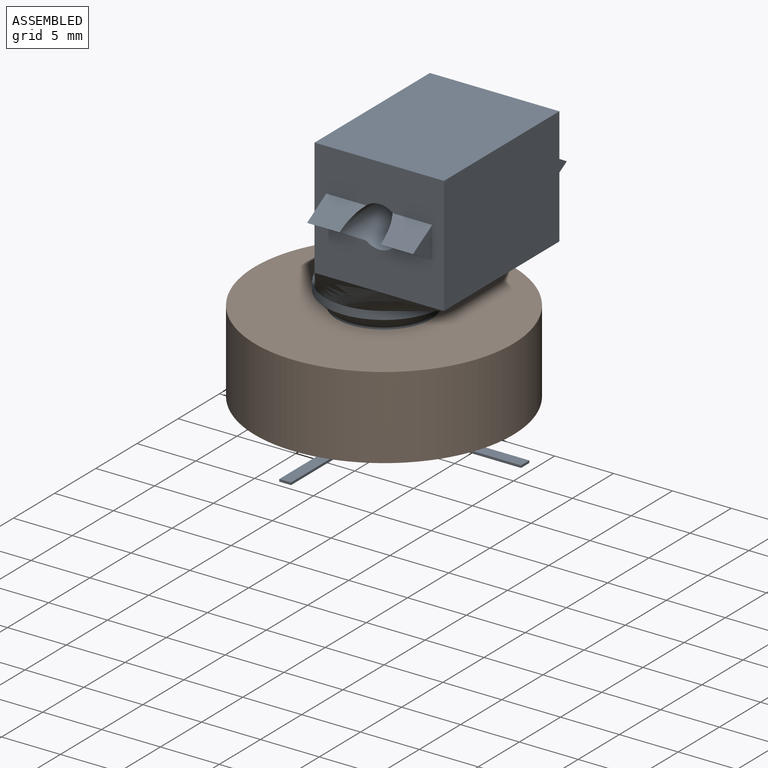
[diagram: assembled view]
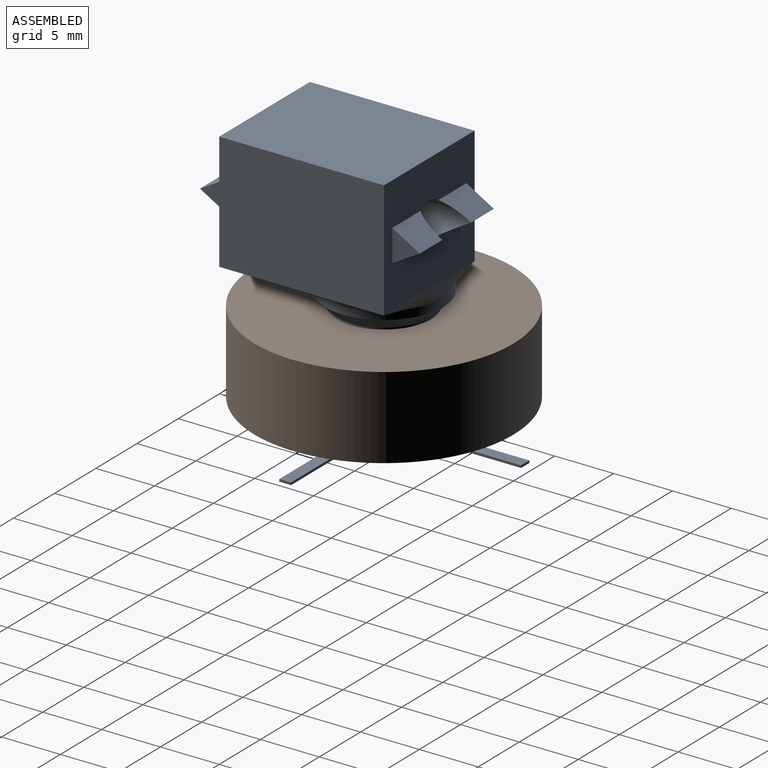
[diagram: assembled view, second angle]
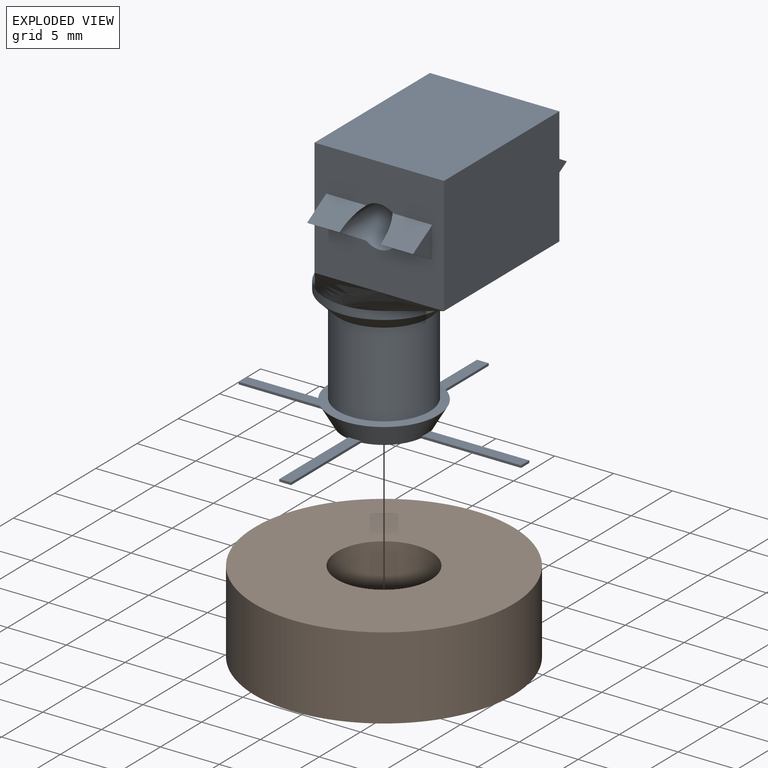
[diagram: exploded view]
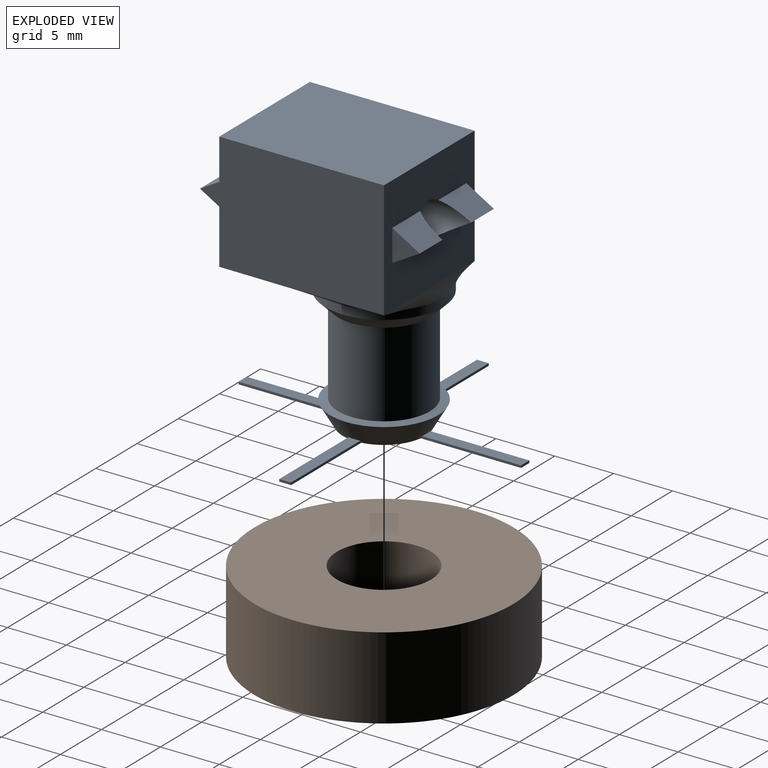
[diagram: exploded view, second angle]
FCSTD DOCUMENT  (FreeCAD 0.21R33668 +7 (Git))
Label: robot-idler
License: All rights reserved
LicenseURL: https://en.wikipedia.org/wiki/All_rights_reserved
objects: Sketcher::SketchObject×8, PartDesign::Plane×3, PartDesign::Revolution×2, PartDesign::Body×2, PartDesign::Pad×2, App::Link×1, PartDesign::Chamfer×1, PartDesign::AdditiveLoft×1, PartDesign::Pocket×1, App::LinkGroup×1
note: 27 computed .brp shape members not serialized (recipe doc carries the construction recipe); baked Part::Feature solids carry a one-line shape summary decoded from their .brp
EXTERNAL_REF file=Off-the-shelf/608.FCStd obj=Body

FEATURE [Sketcher::SketchObject] Sketch
  FullyConstrained = true
  MapMode = 5
  Placement = pos=(0,0,0) rot=(0.57735,0.57735,0.57735;2.0944rad)
  Support = -> [YZ_Plane]
  sketch-geometry (10):
    g0: LineSegment StartX=9.6 StartY=11.2 StartZ=0 EndX=9.6 EndY=10.7 EndZ=0
    g1: LineSegment StartX=9.6 StartY=10.7 StartZ=0 EndX=11.1 EndY=9.2 EndZ=0
    g2: LineSegment StartX=11.1 StartY=9.2 StartZ=0 EndX=11.1 EndY=2 EndZ=0
    g3: LineSegment StartX=11.1 StartY=2 StartZ=0 EndX=9.6 EndY=1.73551 EndZ=0
    g4: LineSegment StartX=9.6 StartY=1.73551 StartZ=0 EndX=10.602 EndY=0 EndZ=0
    g5: LineSegment StartX=10.602 StartY=0 StartZ=0 EndX=17 EndY=0 EndZ=0
    g6: LineSegment StartX=17 StartY=0 StartZ=0 EndX=17 EndY=11.2 EndZ=0
    g7: LineSegment StartX=17 StartY=11.2 StartZ=0 EndX=9.6 EndY=11.2 EndZ=0
    g8: LineSegment StartX=9.6 StartY=1.73551 StartZ=0 EndX=17 EndY=1.73551 EndZ=0
    g9: LineSegment StartX=11.1 StartY=9.2 StartZ=0 EndX=17 EndY=9.2 EndZ=0
  constraints (31):
    c: Vertical(g0)
    c: Coincident(g0,g1)
    c: Coincident(g1,g2)
    c: Vertical(g2)
    c: Coincident(g2,g3)
    c: Coincident(g3,g4)
    c: PointOnObject(g4,g-1)
    c: Coincident(g4,g5)
    c: PointOnObject(g5,g-1)
    c: Coincident(g5,g6)
    c: Vertical(g6)
    c: Coincident(g6,g7)
    c: Coincident(g7,g0)
    c: Horizontal(g7)
    c: DistanceX(g-1,g5) = 17
    c: DistanceY(g5,g2) = 2
    c: Coincident(g8,g3)
    c: PointOnObject(g8,g6)
    c: Horizontal(g8)
    c: Angle(g8,g3) = 0.174533
    c: DistanceX(g-1,g2) = 11.1
    c: DistanceY(g2,g2) = 7.2
    c: DistanceX(g0,g1) = 1.5
    c: Coincident(g9,g1)
    c: PointOnObject(g9,g6)
    c: Horizontal(g9)
    c: Angle(g1,g9) = 3.92699
    c: DistanceY(g1,g6) = 2
    c: DistanceX(g3,g2) = 1.5
    c: Angle(g5,g4) = 2.0944
    c: DistanceY(g6,g6) = 11.2
FEATURE [PartDesign::Revolution] Revolution
  Angle = 360
  Axis = (-2e-16,3e-16,1)
  Base = (0,0,0)
  Placement = pos=(0,0,0) rot=(0.57735,0.57735,0.57735;2.0944rad)
  Profile = -> Sketch
  ReferenceAxis = -> Sketch [V_Axis]
  Reversed = true
FEATURE [Sketcher::SketchObject] Sketch001
  FullyConstrained = true
  MapMode = 5
  Placement = pos=(0,0,0) rot=(0.57735,0.57735,0.57735;2.0944rad)
  Support = -> [YZ_Plane001]
  sketch-geometry (10):
    g0: LineSegment StartX=0 StartY=0 StartZ=0 EndX=3.5 EndY=0 EndZ=0
    g1: LineSegment StartX=3.5 StartY=0 StartZ=0 EndX=4.58497 EndY=1.87922 EndZ=0
    g2: LineSegment StartX=4.58497 StartY=1.87922 StartZ=0 EndX=3.9 EndY=2 EndZ=0
    g3: LineSegment StartX=3.9 StartY=2 StartZ=0 EndX=3.9 EndY=9.2 EndZ=0
    g4: LineSegment StartX=3.9 StartY=9.2 StartZ=0 EndX=5 EndY=10.3 EndZ=0
    g5: LineSegment StartX=5 StartY=10.3 StartZ=0 EndX=5 EndY=11 EndZ=0
    g6: LineSegment StartX=5 StartY=11 StartZ=0 EndX=0 EndY=11 EndZ=0
    g7: LineSegment StartX=0 StartY=11 StartZ=0 EndX=0 EndY=0 EndZ=0
    g8: LineSegment StartX=3.9 StartY=2 StartZ=0 EndX=0 EndY=2 EndZ=0
    g9: LineSegment StartX=3.9 StartY=9.2 StartZ=0 EndX=0 EndY=9.2 EndZ=0
  constraints (29):
    c: Coincident(g-1,g0)
    c: PointOnObject(g0,g-1)
    c: Coincident(g0,g1)
    c: Coincident(g1,g2)
    c: Coincident(g2,g3)
    c: Vertical(g3)
    c: Coincident(g3,g4)
    c: Coincident(g4,g5)
    c: Vertical(g5)
    c: Coincident(g5,g6)
    c: PointOnObject(g6,g-2)
    c: Horizontal(g6)
    c: Coincident(g6,g7)
    c: Coincident(g7,g0)
    c: DistanceX(g0,g0) = 3.5
    c: Angle(g1,g0) = 2.0944
    c: DistanceY(g0,g2) = 2
    c: DistanceX(g6,g3) = 3.9
    c: DistanceY(g3,g3) = 7.2
    c: Coincident(g8,g2)
    c: PointOnObject(g8,g7)
    c: Horizontal(g8)
    c: Angle(g8,g2) = 2.96706
    c: Coincident(g9,g3)
    c: PointOnObject(g9,g7)
    c: Horizontal(g9)
    c: Angle(g4,g9) = 2.35619
    c: DistanceX(g6,g6) = 5
    c: DistanceY(g0,g5) = 11
FEATURE [PartDesign::Revolution] Revolution001
  Angle = 360
  Axis = (-2e-16,3e-16,1)
  Base = (0,0,0)
  Placement = pos=(0,0,0) rot=(0.57735,0.57735,0.57735;2.0944rad)
  Profile = -> Sketch001
  ReferenceAxis = -> Sketch001 [V_Axis]
  Reversed = true
FEATURE [App::Link] Link  label="bearing"
  LinkPlacement = pos=(0,0,5.6) rot=(1,0,0;1.5708rad)
  LinkedObject = -> <external Off-the-shelf/608.FCStd>#Body
  Placement = pos=(0,0,5.6) rot=(1,0,0;1.5708rad)
FEATURE [PartDesign::Chamfer] Chamfer
  Angle = 45
  Base = -> Revolution [Face6]
  BaseFeature = -> Revolution
  ChamferType = 0
  FlipDirection = false
  Placement = pos=(0,0,0) rot=(0.57735,0.57735,0.57735;2.0944rad)
  Size = 0.5
  Size2 = 1
  SupportTransform = false
  UseAllEdges = false
FEATURE [PartDesign::Body] Body  label="outer"
  Group = -> [Sketch,Revolution,Chamfer]
  Origin = -> Origin
  Tip = -> Chamfer
FEATURE [PartDesign::Plane] DatumPlane
  Length = 60
  MapMode = 5
  Placement = pos=(-4.8e-15,3.1e-15,11) rot=(0,0,-1;1.5708rad)
  ResizeMode = 0
  Support = -> [Revolution001]
  Width = 60
FEATURE [Sketcher::SketchObject] Sketch002
  FullyConstrained = true
  MapMode = 5
  Placement = pos=(-4.8e-15,3.1e-15,11) rot=(0,0,-1;1.5708rad)
  Support = -> [DatumPlane]
  sketch-geometry (1):
    g0: Circle CenterX=0 CenterY=0 CenterZ=0 NormalX=0 NormalY=0 NormalZ=1 AngleXU=0 Radius=5
  constraints (2):
    c: Coincident(g0,g-1)
    c: Diameter(g0) = 10
FEATURE [PartDesign::Plane] DatumPlane001
  AttachmentOffset = pos=(0,0,3) rot=(0,0,1;0rad)
  Length = 60
  MapMode = 5
  Placement = pos=(-6.2e-15,3.9e-15,14) rot=(0,0,-1;1.5708rad)
  ResizeMode = 0
  Support = -> [DatumPlane]
  Width = 60
FEATURE [Sketcher::SketchObject] Sketch003
  FullyConstrained = true
  MapMode = 5
  Placement = pos=(-6.2e-15,3.9e-15,14) rot=(0,0,-1;1.5708rad)
  Support = -> [DatumPlane001]
  sketch-geometry (4):
    g0: LineSegment StartX=-7 StartY=10 StartZ=0 EndX=7 EndY=10 EndZ=0
    g1: LineSegment StartX=7 StartY=10 StartZ=0 EndX=7 EndY=-1 EndZ=0
    g2: LineSegment StartX=7 StartY=-1 StartZ=0 EndX=-7 EndY=-1 EndZ=0
    g3: LineSegment StartX=-7 StartY=-1 StartZ=0 EndX=-7 EndY=10 EndZ=0
  constraints (11):
    c: Coincident(g0,g1)
    c: Coincident(g1,g2)
    c: Coincident(g2,g3)
    c: Coincident(g3,g0)
    c: Horizontal(g2)
    c: Vertical(g1)
    c: Symmetric(g0,g0,g-2)
    c: Vertical(g3)
    c: DistanceY(g-1,g0) = 10
    c: DistanceX(g0,g0) = 14
    c: DistanceY(g1,g-1) = 1
FEATURE [PartDesign::Plane] DatumPlane002
  AttachmentOffset = pos=(0,0,10) rot=(0,0,1;0rad)
  Length = 60
  MapMode = 5
  Placement = pos=(-1.06e-14,6.7e-15,24) rot=(0,0,-1;1.5708rad)
  ResizeMode = 0
  Support = -> [DatumPlane001]
  Width = 60
FEATURE [Sketcher::SketchObject] Sketch004
  FullyConstrained = true
  MapMode = 5
  Placement = pos=(-1.06e-14,6.7e-15,24) rot=(0,0,-1;1.5708rad)
  Support = -> [DatumPlane002]
  sketch-geometry (4):
    g0: LineSegment StartX=-7 StartY=10 StartZ=0 EndX=7 EndY=10 EndZ=0
    g1: LineSegment StartX=7 StartY=10 StartZ=0 EndX=7 EndY=-1 EndZ=0
    g2: LineSegment StartX=7 StartY=-1 StartZ=0 EndX=-7 EndY=-1 EndZ=0
    g3: LineSegment StartX=-7 StartY=-1 StartZ=0 EndX=-7 EndY=10 EndZ=0
  constraints (11):
    c: Coincident(g0,g1)
    c: Coincident(g1,g2)
    c: Coincident(g2,g3)
    c: Coincident(g3,g0)
    c: Horizontal(g2)
    c: Vertical(g1)
    c: Vertical(g3)
    c: DistanceX(g0,g0) = 14
    c: Symmetric(g0,g0,g-2)
    c: DistanceY(g-1,g0) = 10
    c: DistanceY(g1,g-1) = 1
FEATURE [PartDesign::AdditiveLoft] AdditiveLoft
  BaseFeature = -> Revolution001
  Closed = false
  Placement = pos=(0,0,0) rot=(0.57735,0.57735,0.57735;2.0944rad)
  Profile = -> Sketch002
  Ruled = true
  Sections = -> [Sketch003,Sketch004]
FEATURE [Sketcher::SketchObject] Sketch005
  FullyConstrained = true
  MapMode = 5
  Placement = pos=(0,0,0) rot=(0.57735,0.57735,0.57735;2.0944rad)
  Support = -> [YZ_Plane001]
  sketch-geometry (8):
    g0: LineSegment StartX=-7 StartY=20.35 StartZ=0 EndX=-9.33827 EndY=19 EndZ=0
    g1: LineSegment StartX=-9.33827 StartY=19 StartZ=0 EndX=-7 EndY=17.65 EndZ=0
    g2: LineSegment StartX=-7 StartY=17.65 StartZ=0 EndX=7 EndY=17.65 EndZ=0
    g3: LineSegment StartX=7 StartY=17.65 StartZ=0 EndX=9.33827 EndY=19 EndZ=0
    g4: LineSegment StartX=9.33827 StartY=19 StartZ=0 EndX=7 EndY=20.35 EndZ=0
    g5: LineSegment StartX=7 StartY=20.35 StartZ=0 EndX=-7 EndY=20.35 EndZ=0
    g6: LineSegment StartX=-7 StartY=20.35 StartZ=0 EndX=-7 EndY=17.65 EndZ=0
    g7: LineSegment StartX=7 StartY=20.35 StartZ=0 EndX=7 EndY=17.65 EndZ=0
  constraints (21):
    c: Coincident(g0,g1)
    c: Coincident(g1,g2)
    c: Horizontal(g2)
    c: Coincident(g2,g3)
    c: Coincident(g3,g4)
    c: Coincident(g4,g5)
    c: Coincident(g5,g0)
    c: Coincident(g6,g0)
    c: Coincident(g6,g1)
    c: Vertical(g6)
    c: Coincident(g7,g4)
    c: Coincident(g7,g2)
    c: Vertical(g7)
    c: Equal(g0,g1)
    c: Equal(g4,g3)
    c: Equal(g1,g3)
    c: Symmetric(g0,g4,g-2)
    c: Equal(g1,g6)
    c: DistanceX(g5,g5) = 14
    c: DistanceY(g2,g4) = 2.7
    c: DistanceY(g-1,g3) = 19
FEATURE [PartDesign::Pad] Pad
  BaseFeature = -> AdditiveLoft
  Direction = (1,-2e-16,3e-16)
  Length = 9
  Length2 = 10
  Placement = pos=(0,0,0) rot=(0.57735,0.57735,0.57735;2.0944rad)
  Profile = -> Sketch005
  ReferenceAxis = -> Sketch005 [N_Axis]
  Type = 0
FEATURE [Sketcher::SketchObject] Sketch006
  FullyConstrained = true
  MapMode = 5
  Placement = pos=(0,0,0) rot=(1,0,0;1.5708rad)
  Support = -> [XZ_Plane001]
  sketch-geometry (1):
    g0: Circle CenterX=4.5 CenterY=19 CenterZ=0 NormalX=0 NormalY=0 NormalZ=1 AngleXU=0 Radius=1.75
  constraints (3):
    c: Diameter(g0) = 3.5
    c: DistanceY(g-1,g0) = 19
    c: DistanceX(g-1,g0) = 4.5
FEATURE [PartDesign::Pocket] Pocket
  BaseFeature = -> Pad
  Direction = (0,1,2e-16)
  Length = 5
  Length2 = 5
  Midplane = true
  Placement = pos=(0,0,0) rot=(0.57735,0.57735,0.57735;2.0944rad)
  Profile = -> Sketch006
  ReferenceAxis = -> Sketch006 [N_Axis]
  Type = 1
FEATURE [Sketcher::SketchObject] Sketch007
  FullyConstrained = true
  MapMode = 5
  Support = -> [XY_Plane001]
  sketch-geometry (21):
    g0: LineSegment StartX=12 StartY=0.5 StartZ=0 EndX=3 EndY=0.5 EndZ=0
    g1: LineSegment StartX=3 StartY=0.5 StartZ=0 EndX=3 EndY=-0.5 EndZ=0
    g2: LineSegment StartX=3 StartY=-0.5 StartZ=0 EndX=12 EndY=-0.5 EndZ=0
    g3: LineSegment StartX=12 StartY=-0.5 StartZ=0 EndX=12 EndY=0.5 EndZ=0
    g4: LineSegment StartX=0.5 StartY=12 StartZ=0 EndX=-0.5 EndY=12 EndZ=0
    g5: LineSegment StartX=-0.5 StartY=12 StartZ=0 EndX=-0.5 EndY=3 EndZ=0
    g6: LineSegment StartX=-0.5 StartY=3 StartZ=0 EndX=0.5 EndY=3 EndZ=0
    g7: LineSegment StartX=0.5 StartY=3 StartZ=0 EndX=0.5 EndY=12 EndZ=0
    g8: LineSegment StartX=-3 StartY=0.5 StartZ=0 EndX=-12 EndY=0.5 EndZ=0
    g9: LineSegment StartX=-12 StartY=0.5 StartZ=0 EndX=-12 EndY=-0.5 EndZ=0
    g10: LineSegment StartX=-12 StartY=-0.5 StartZ=0 EndX=-3 EndY=-0.5 EndZ=0
    g11: LineSegment StartX=-3 StartY=-0.5 StartZ=0 EndX=-3 EndY=0.5 EndZ=0
    g12: LineSegment StartX=0.5 StartY=-3 StartZ=0 EndX=-0.5 EndY=-3 EndZ=0
    g13: LineSegment StartX=-0.5 StartY=-3 StartZ=0 EndX=-0.5 EndY=-12 EndZ=0
    g14: LineSegment StartX=-0.5 StartY=-12 StartZ=0 EndX=0.5 EndY=-12 EndZ=0
    g15: LineSegment StartX=0.5 StartY=-12 StartZ=0 EndX=0.5 EndY=-3 EndZ=0
    g16: Circle CenterX=0 CenterY=0 CenterZ=0 NormalX=0 NormalY=0 NormalZ=1 AngleXU=0 Radius=3
    g17: LineSegment StartX=3 StartY=0.5 StartZ=0 EndX=0.5 EndY=3 EndZ=0
    g18: LineSegment StartX=-0.5 StartY=3 StartZ=0 EndX=-3 EndY=0.5 EndZ=0
    g19: LineSegment StartX=-3 StartY=-0.5 StartZ=0 EndX=-0.5 EndY=-3 EndZ=0
    g20: LineSegment StartX=0.5 StartY=-3 StartZ=0 EndX=3 EndY=-0.5 EndZ=0
  constraints (54):
    c: Coincident(g0,g1)
    c: Coincident(g1,g2)
    c: Coincident(g2,g3)
    c: Coincident(g3,g0)
    c: Horizontal(g0)
    c: Horizontal(g2)
    c: Vertical(g3)
    c: Coincident(g4,g5)
    c: Coincident(g5,g6)
    c: Coincident(g6,g7)
    c: Coincident(g7,g4)
    c: Horizontal(g4)
    c: Vertical(g5)
    c: Vertical(g7)
    c: Coincident(g8,g9)
    c: Coincident(g9,g10)
    c: Coincident(g10,g11)
    c: Coincident(g11,g8)
    c: Horizontal(g8)
    c: Horizontal(g10)
    c: Vertical(g9)
    c: Coincident(g12,g13)
    c: Coincident(g13,g14)
    c: Coincident(g14,g15)
    c: Coincident(g15,g12)
    c: Horizontal(g14)
    c: Vertical(g13)
    c: Vertical(g15)
    c: Symmetric(g8,g10,g-1)
    c: Symmetric(g0,g1,g-1)
    c: Symmetric(g6,g5,g-2)
    c: Symmetric(g12,g12,g-2)
    c: Equal(g1,g11)
    c: Equal(g11,g6)
    c: Equal(g6,g12)
    c: DistanceY(g9,g9) = 1
    c: Coincident(g16,g-1)
    c: Tangent(g16,g6)
    c: Tangent(g16,g11)
    c: Tangent(g16,g12)
    c: Tangent(g1,g16)
    c: Diameter(g16) = 6
    c: Equal(g10,g5)
    c: Equal(g5,g2)
    c: Equal(g2,g13)
    c: DistanceX(g10,g10) = 9
    c: Coincident(g17,g0)
    c: Coincident(g17,g7)
    c: Coincident(g18,g5)
    c: Coincident(g18,g8)
    c: Coincident(g19,g10)
    c: Coincident(g19,g13)
    c: Coincident(g20,g15)
    c: Coincident(g20,g2)
FEATURE [PartDesign::Pad] Pad001
  BaseFeature = -> Pocket
  Direction = (0,0,1)
  Length = 0.2
  Length2 = 10
  Placement = pos=(0,0,0) rot=(0.57735,0.57735,0.57735;2.0944rad)
  Profile = -> Sketch007
  ReferenceAxis = -> Sketch007 [N_Axis]
  Type = 0
FEATURE [PartDesign::Body] Body001  label="inner"
  Group = -> [Sketch001,Revolution001,DatumPlane,Sketch002,DatumPlane001,Sketch003,DatumPlane002,Sketch004,AdditiveLoft,Sketch005,Pad,Sketch006,Pocket,Sketch007,Pad001]
  Origin = -> Origin001
  Tip = -> Pad001
FEATURE [App::LinkGroup] LinkGroup  label="idler-assy"
  ElementList = -> [Link,Body001,Body]
  LinkMode = 1

RESOLVED EXTERNAL PARTS (link-assembly join: the EXTERNAL_REF files above that resolve inside this repo's crawl, each included once):
---- part Off-the-shelf/608.FCStd = doc fcstd_22d1fb852deb ----
FCSTD DOCUMENT  (FreeCAD 0.21R33668 +7 (Git))
Label: 608
License: All rights reserved
LicenseURL: https://en.wikipedia.org/wiki/All_rights_reserved
objects: Sketcher::SketchObject×1, PartDesign::Revolution×1, PartDesign::Body×1
note: 4 computed .brp shape members not serialized (recipe doc carries the construction recipe); baked Part::Feature solids carry a one-line shape summary decoded from their .brp

FEATURE [Sketcher::SketchObject] Sketch
  FullyConstrained = true
  MapMode = 5
  Placement = pos=(0,0,0) rot=(0.57735,0.57735,0.57735;2.0944rad)
  Support = -> [YZ_Plane]
  sketch-geometry (4):
    g0: LineSegment StartX=-3.5 StartY=11 StartZ=0 EndX=3.5 EndY=11 EndZ=0
    g1: LineSegment StartX=3.5 StartY=11 StartZ=0 EndX=3.5 EndY=4 EndZ=0
    g2: LineSegment StartX=3.5 StartY=4 StartZ=0 EndX=-3.5 EndY=4 EndZ=0
    g3: LineSegment StartX=-3.5 StartY=4 StartZ=0 EndX=-3.5 EndY=11 EndZ=0
  constraints (11):
    c: Coincident(g0,g1)
    c: Coincident(g1,g2)
    c: Coincident(g2,g3)
    c: Coincident(g3,g0)
    c: Horizontal(g2)
    c: Vertical(g1)
    c: Vertical(g3)
    c: Symmetric(g0,g0,g-2)
    c: DistanceX(g0,g0) = 7
    c: DistanceY(g-1,g2) = 4
    c: DistanceY(g-1,g0) = 11
FEATURE [PartDesign::Revolution] Revolution
  Angle = 360
  Axis = (3e-16,1,-2e-16)
  Base = (0,0,0)
  Placement = pos=(0,0,0) rot=(1,1,1;2.0944rad)
  Profile = -> Sketch
  ReferenceAxis = -> Sketch [H_Axis]
FEATURE [PartDesign::Body] Body  label="608"
  Group = -> [Sketch,Revolution]
  Origin = -> Origin
  Tip = -> Revolution
